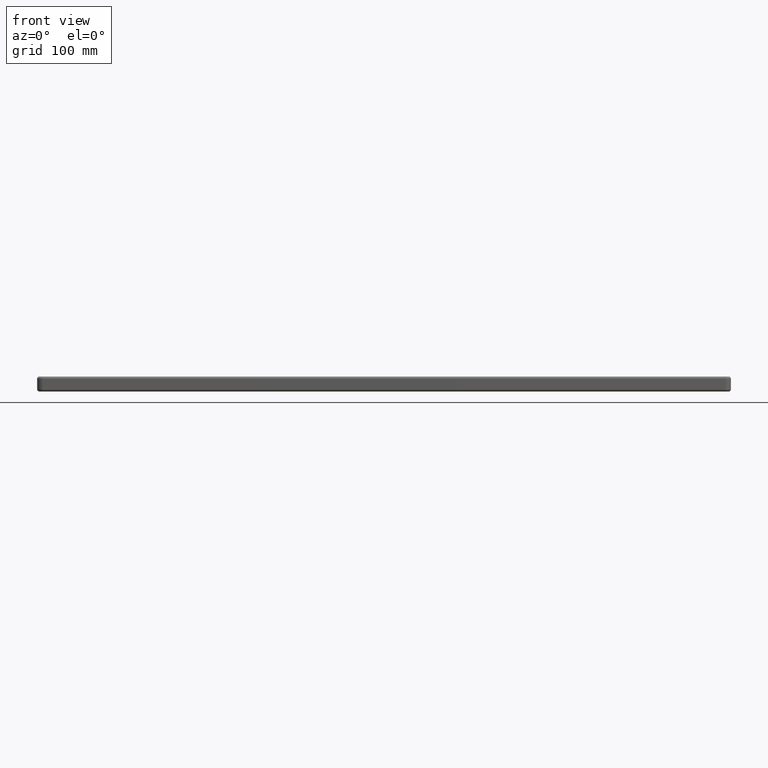
[diagram: clean part render]
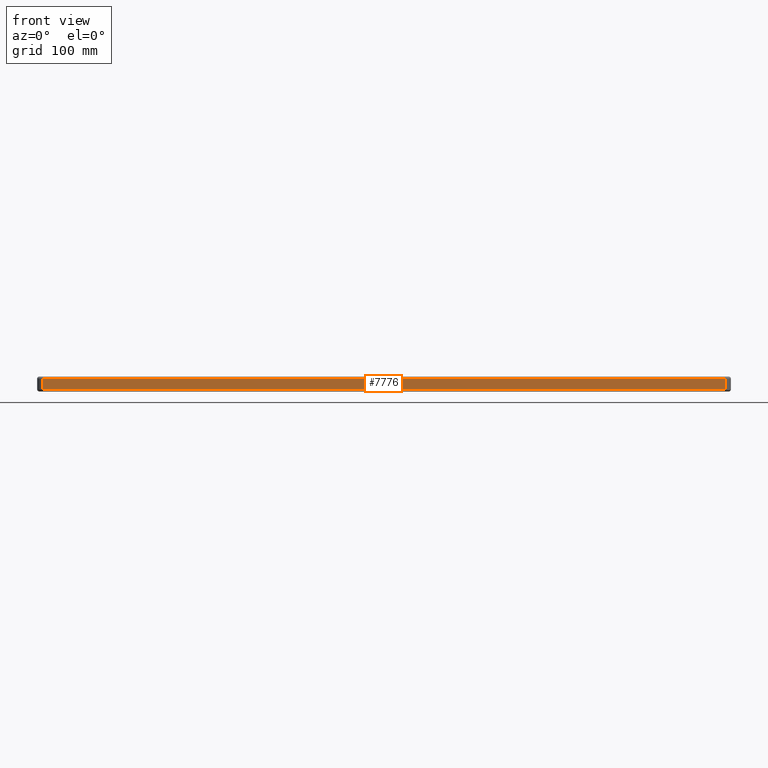
[diagram: same view with one face highlighted and labeled with its STEP entity id]
A machine part, front view. The second image highlights one B-rep face of the part: STEP entity #7776.
In plain terms, the highlighted planar face has unit normal (-0, -1, 0).
Its self-contained STEP definition (entity closure, byte-faithful):
#678 = VECTOR ( 'NONE', #5073, 1000.000000000000000 ) ;
#869 = CARTESIAN_POINT ( 'NONE',  ( 295.0000000000001700, -100.0000000000000700, -2.000000000000003600 ) ) ;
#1125 = CARTESIAN_POINT ( 'NONE',  ( -295.0000000000001700, -100.0000000000000000, -11.00000000000000000 ) ) ;
#1379 = LINE ( 'NONE', #1591, #12537 ) ;
#1591 = CARTESIAN_POINT ( 'NONE',  ( 295.0000000000001700, -100.0000000000000700, -13.00000000000000000 ) ) ;
#1822 = PLANE ( 'NONE',  #9454 ) ;
#1922 = VERTEX_POINT ( 'NONE', #869 ) ;
#1974 = CARTESIAN_POINT ( 'NONE',  ( -295.0000000000001700, -100.0000000000000000, -2.000000000000001800 ) ) ;
#2318 = ORIENTED_EDGE ( 'NONE', *, *, #6716, .F. ) ;
#3471 = CARTESIAN_POINT ( 'NONE',  ( 295.0000000000001700, -100.0000000000000700, -11.00000000000000000 ) ) ;
#4330 = DIRECTION ( 'NONE',  ( 0.0000000000000000000, 0.0000000000000000000, 1.000000000000000000 ) ) ;
#4653 = EDGE_CURVE ( 'NONE', #11503, #5923, #8720, .T. ) ;
#4842 = CARTESIAN_POINT ( 'NONE',  ( -295.0000000000001700, -100.0000000000000000, -13.00000000000000000 ) ) ;
#4887 = DIRECTION ( 'NONE',  ( 1.000000000000000000, -1.176083712526648200E-016, 0.0000000000000000000 ) ) ;
#5073 = DIRECTION ( 'NONE',  ( 1.000000000000000000, -1.176083712526648200E-016, 0.0000000000000000000 ) ) ;
#5123 = ORIENTED_EDGE ( 'NONE', *, *, #4653, .T. ) ;
#5459 = EDGE_CURVE ( 'NONE', #5923, #1922, #1379, .T. ) ;
#5691 = EDGE_LOOP ( 'NONE', ( #2318, #5123, #5852, #11990 ) ) ;
#5852 = ORIENTED_EDGE ( 'NONE', *, *, #5459, .T. ) ;
#5923 = VERTEX_POINT ( 'NONE', #3471 ) ;
#6463 = DIRECTION ( 'NONE',  ( -1.000000000000000000, 1.176083712526648200E-016, -0.0000000000000000000 ) ) ;
#6716 = EDGE_CURVE ( 'NONE', #11503, #8098, #13429, .T. ) ;
#6839 = VECTOR ( 'NONE', #4330, 1000.000000000000000 ) ;
#7285 = CARTESIAN_POINT ( 'NONE',  ( -295.0000000000001700, -100.0000000000000000, -11.00000000000000000 ) ) ;
#7558 = CARTESIAN_POINT ( 'NONE',  ( -295.0000000000001700, -100.0000000000000000, -13.00000000000000000 ) ) ;
#7776 = ADVANCED_FACE ( 'NONE', ( #12409 ), #1822, .T. ) ;
#8098 = VERTEX_POINT ( 'NONE', #1974 ) ;
#8720 = LINE ( 'NONE', #7285, #678 ) ;
#9454 = AXIS2_PLACEMENT_3D ( 'NONE', #4842, #12201, #4887 ) ;
#9736 = EDGE_CURVE ( 'NONE', #1922, #8098, #11331, .T. ) ;
#10606 = CARTESIAN_POINT ( 'NONE',  ( -295.0000000000001700, -100.0000000000000000, -2.000000000000000000 ) ) ;
#11122 = DIRECTION ( 'NONE',  ( 0.0000000000000000000, 0.0000000000000000000, 1.000000000000000000 ) ) ;
#11331 = LINE ( 'NONE', #10606, #11649 ) ;
#11503 = VERTEX_POINT ( 'NONE', #1125 ) ;
#11649 = VECTOR ( 'NONE', #6463, 1000.000000000000000 ) ;
#11990 = ORIENTED_EDGE ( 'NONE', *, *, #9736, .T. ) ;
#12201 = DIRECTION ( 'NONE',  ( -1.176083712526648200E-016, -1.000000000000000000, 0.0000000000000000000 ) ) ;
#12409 = FACE_OUTER_BOUND ( 'NONE', #5691, .T. ) ;
#12537 = VECTOR ( 'NONE', #11122, 1000.000000000000000 ) ;
#13429 = LINE ( 'NONE', #7558, #6839 ) ;